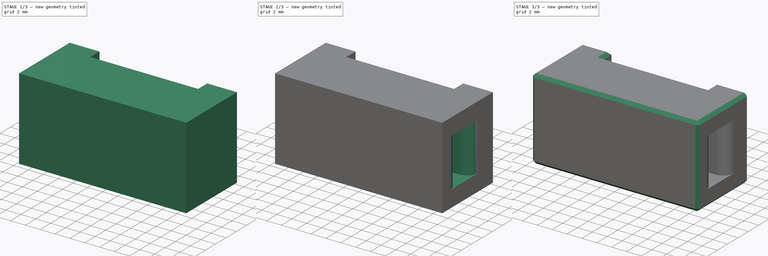
[diagram: build sequence overview — one tinted view per stage of 3, left to right]
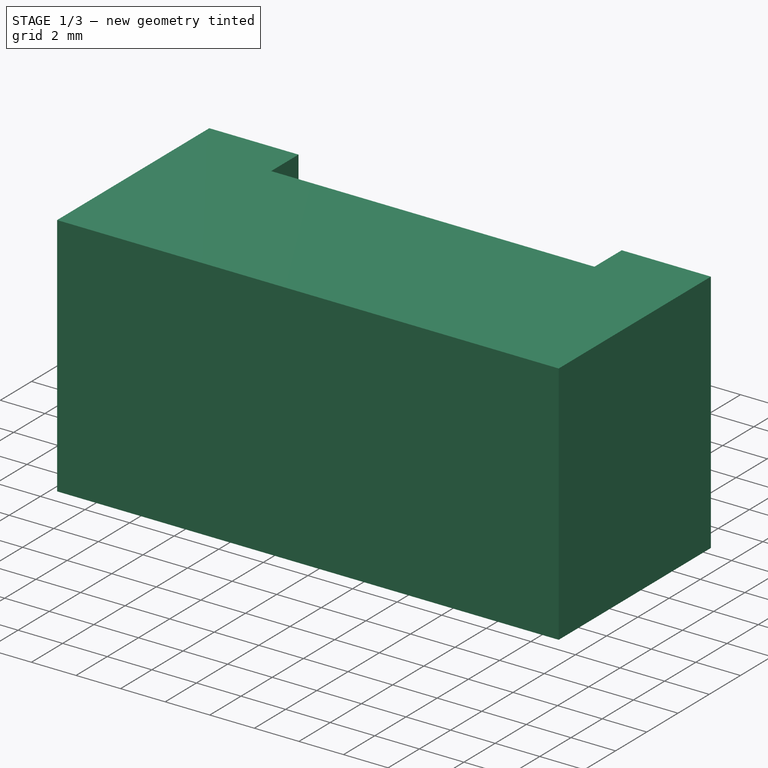
[diagram: stage 1 of 3 — iso view after this stage's code; geometry added in this stage tinted green]
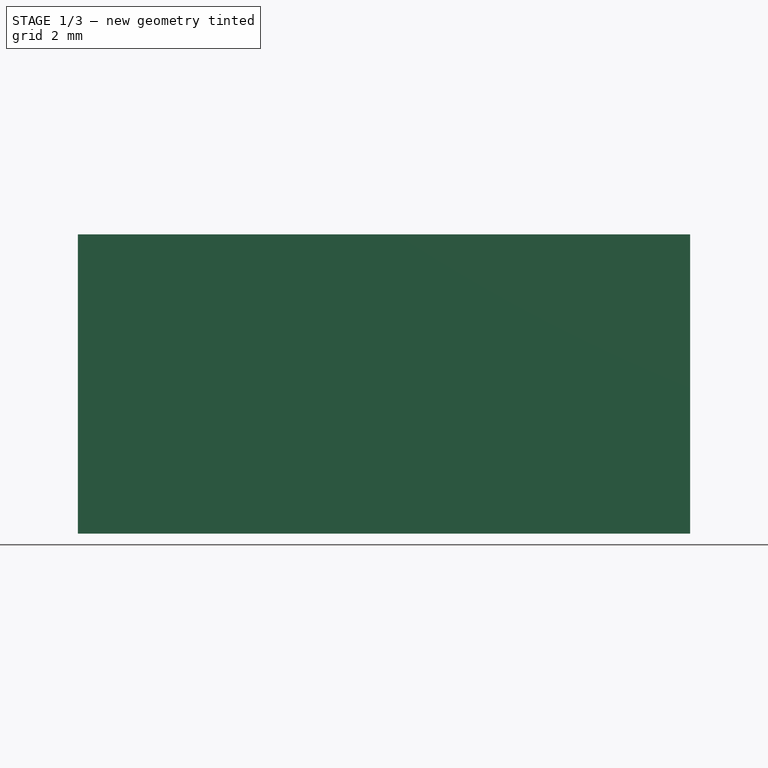
[diagram: stage 1 of 3 — front view after this stage's code; geometry added in this stage tinted green]
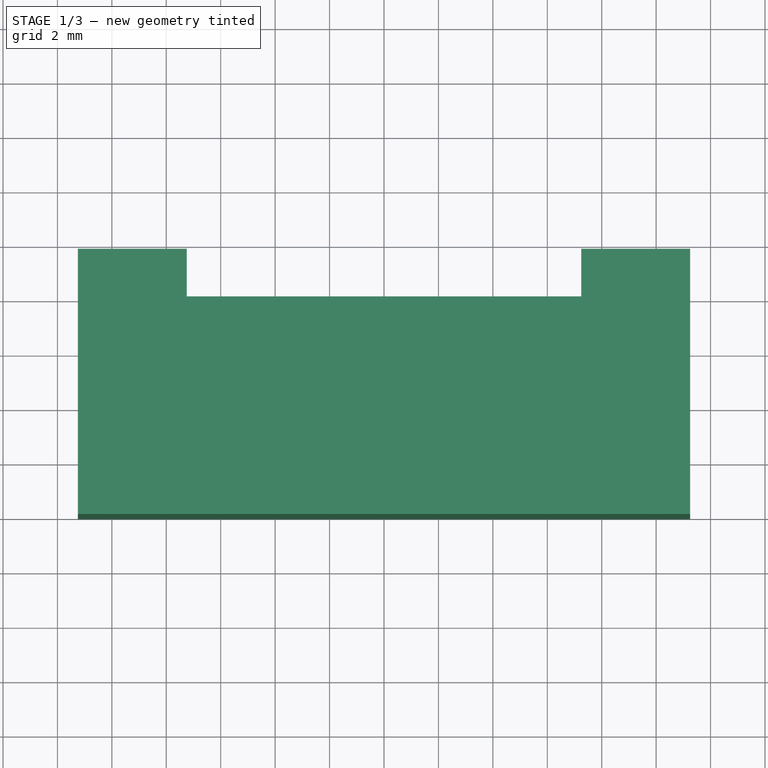
[diagram: stage 1 of 3 — top view after this stage's code; geometry added in this stage tinted green]
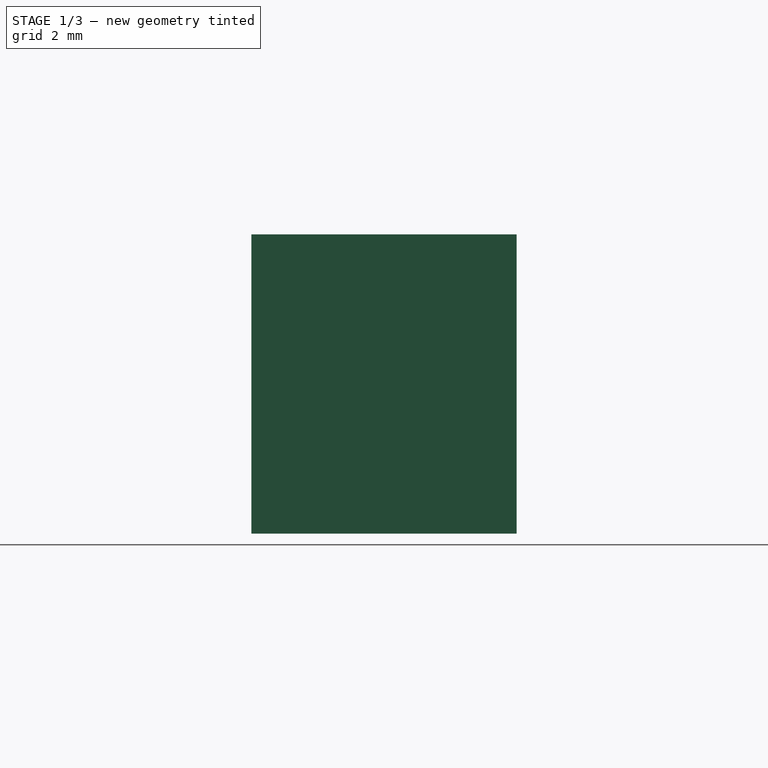
[diagram: stage 1 of 3 — right view after this stage's code; geometry added in this stage tinted green]
FCSTD DOCUMENT  (FreeCAD 0.19R24366 (Git))
Label: belt-clamp
License: All rights reserved
LicenseURL: http://en.wikipedia.org/wiki/All_rights_reserved
objects: PartDesign::Fillet×3, Sketcher::SketchObject×2, PartDesign::Pad×1, PartDesign::Plane×1, PartDesign::Pocket×1, PartDesign::Mirrored×1, PartDesign::Chamfer×1, PartDesign::Body×1
note: 17 computed .brp shape members not serialized (recipe doc carries the construction recipe); baked Part::Feature solids carry a one-line shape summary decoded from their .brp

FEATURE [Sketcher::SketchObject] Sketch
  FullyConstrained = true
  MapMode = 5
  Support = -> [XY_Plane]
  sketch-geometry (8):
    g0: LineSegment StartX=-7.25 StartY=1.75 StartZ=0 EndX=-7.25 EndY=0 EndZ=0
    g1: LineSegment StartX=-7.25 StartY=0 StartZ=0 EndX=7.25 EndY=0 EndZ=0
    g2: LineSegment StartX=7.25 StartY=0 StartZ=0 EndX=7.25 EndY=1.75 EndZ=0
    g3: LineSegment StartX=7.25 StartY=1.75 StartZ=0 EndX=11.25 EndY=1.75 EndZ=0
    g4: LineSegment StartX=11.25 StartY=1.75 StartZ=0 EndX=11.25 EndY=-8 EndZ=0
    g5: LineSegment StartX=11.25 StartY=-8 StartZ=0 EndX=-11.25 EndY=-8 EndZ=0
    g6: LineSegment StartX=-11.25 StartY=-8 StartZ=0 EndX=-11.25 EndY=1.75 EndZ=0
    g7: LineSegment StartX=-11.25 StartY=1.75 StartZ=0 EndX=-7.25 EndY=1.75 EndZ=0
  constraints (24):
    c: PointOnObject(g0,g-1)
    c: Vertical(g0)
    c: Coincident(g0,g1)
    c: PointOnObject(g1,g-1)
    c: Coincident(g1,g2)
    c: Coincident(g2,g3)
    c: Horizontal(g3)
    c: Coincident(g3,g4)
    c: Vertical(g4)
    c: Coincident(g4,g5)
    c: Horizontal(g5)
    c: Coincident(g5,g6)
    c: Vertical(g6)
    c: Coincident(g6,g7)
    c: Coincident(g7,g0)
    c: Horizontal(g7)
    c: DistanceX(g1,g1) = 14.5
    c: Vertical(g2)
    c: DistanceX(g0,g-1) = 7.25
    c: DistanceX(g7,g7) = 4
    c: DistanceX(g3,g3) = 4
    c: Horizontal(g2,g0)
    c: DistanceY(g-1,g6) = 1.75
    c: DistanceY(g5,g-1) = 8
FEATURE [PartDesign::Pad] Pad
  Direction = (1,1,1)
  Length = 11
  Length2 = 100
  Profile = -> Sketch
  Type = 0
FEATURE [PartDesign::Plane] DatumPlane
  AttachmentOffset = pos=(0,0,5.5) rot=(0,0,1;0rad)
  Length = 60
  MapMode = 5
  Placement = pos=(0,0,5.5) rot=(0,0,1;0rad)
  ResizeMode = 0
  Support = -> [XY_Plane]
  Width = 60
FEATURE [Sketcher::SketchObject] Sketch001
  FullyConstrained = true
  MapMode = 5
  Placement = pos=(0,0,5.5) rot=(0,0,1;0rad)
  Support = -> [DatumPlane]
  sketch-geometry (8):
    g0: LineSegment StartX=-1.5 StartY=0 StartZ=0 EndX=-3.5 EndY=0 EndZ=0
    g1: LineSegment StartX=-3.5 StartY=0 StartZ=0 EndX=-6 EndY=-2.6 EndZ=0
    g2: LineSegment StartX=-6 StartY=-2.6 StartZ=0 EndX=-11.25 EndY=-2.6 EndZ=0
    g3: LineSegment StartX=-11.25 StartY=-2.6 StartZ=0 EndX=-11.25 EndY=-5 EndZ=0
    g4: LineSegment StartX=-11.25 StartY=-5 StartZ=0 EndX=0 EndY=-5 EndZ=0
    g5: LineSegment StartX=0 StartY=-5 StartZ=0 EndX=0 EndY=-2.6 EndZ=0
    g6: LineSegment StartX=0 StartY=-2.6 StartZ=0 EndX=-4 EndY=-2.6 EndZ=0
    g7: LineSegment StartX=-4 StartY=-2.6 StartZ=0 EndX=-1.5 EndY=0 EndZ=0
  constraints (24):
    c: PointOnObject(g0,g-1)
    c: PointOnObject(g0,g-1)
    c: DistanceX(g0,g-1) = 1.5
    c: DistanceX(g0,g0) = 2
    c: Coincident(g0,g1)
    c: Coincident(g1,g2)
    c: Horizontal(g2)
    c: Coincident(g2,g3)
    c: Vertical(g3)
    c: Coincident(g3,g4)
    c: PointOnObject(g4,g-2)
    c: Horizontal(g4)
    c: Coincident(g4,g5)
    c: PointOnObject(g5,g-2)
    c: Coincident(g5,g6)
    c: Horizontal(g6)
    c: Coincident(g6,g7)
    c: Coincident(g7,g0)
    c: Horizontal(g1,g6)
    c: DistanceY(g3,g3) = 2.4
    c: DistanceX(g2,g-1) = 11.25
    c: DistanceX(g1,g6) = 2
    c: DistanceX(g6,g5) = 4
    c: DistanceY(g2,g-1) = 2.6
FEATURE [PartDesign::Pocket] Pocket
  BaseFeature = -> Pad
  Length = 6.5
  Length2 = 100
  Midplane = true
  Profile = -> Sketch001
  Type = 0
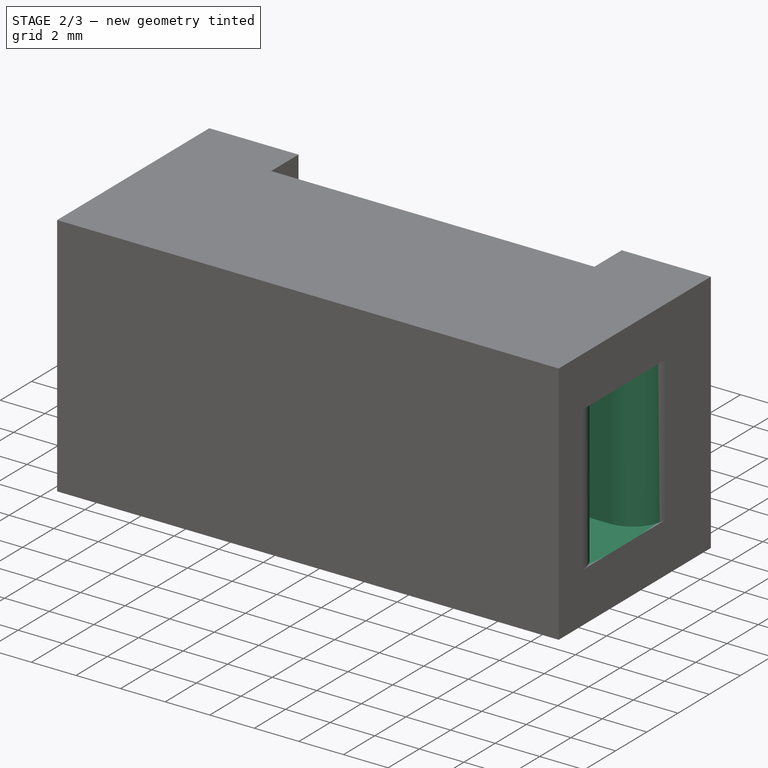
[diagram: stage 2 of 3 — iso view after this stage's code; geometry added in this stage tinted green]
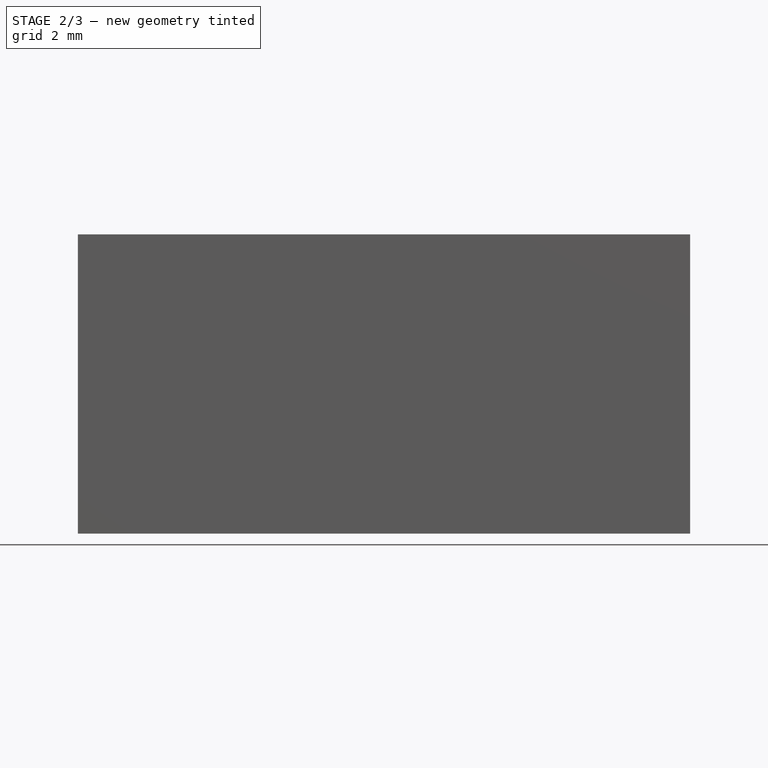
[diagram: stage 2 of 3 — front view after this stage's code; geometry added in this stage tinted green]
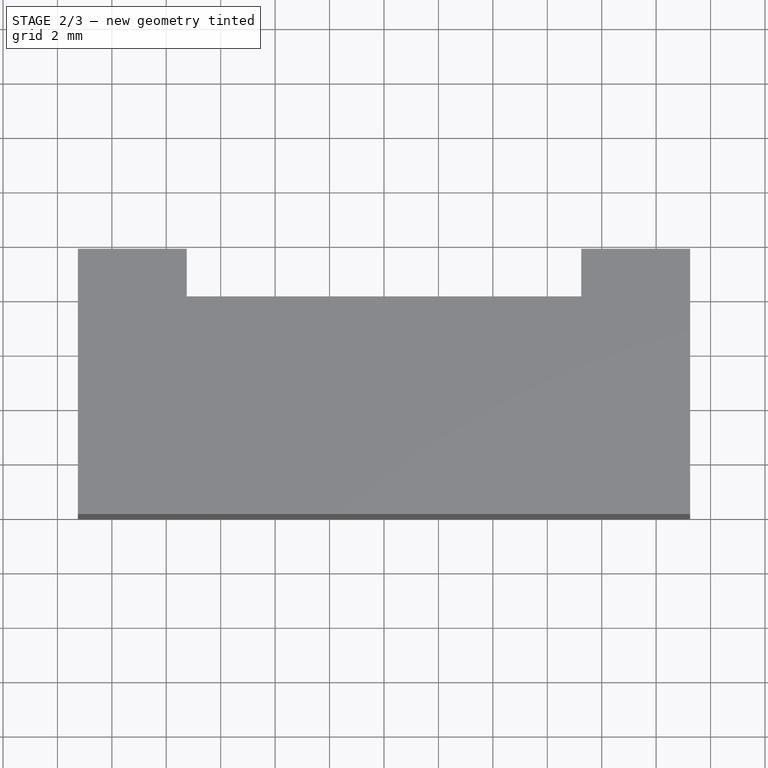
[diagram: stage 2 of 3 — top view after this stage's code; geometry added in this stage tinted green]
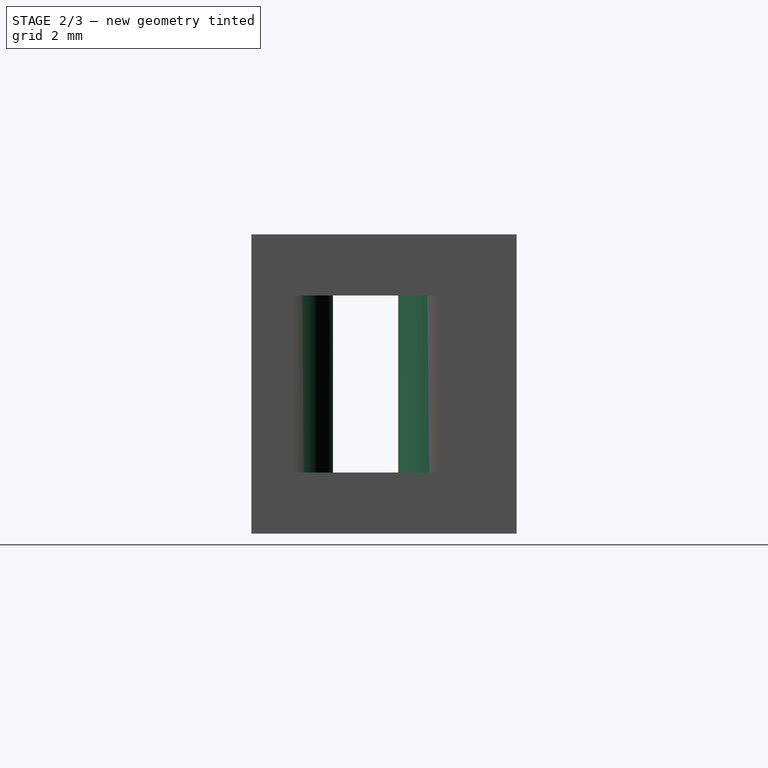
[diagram: stage 2 of 3 — right view after this stage's code; geometry added in this stage tinted green]
FEATURE [PartDesign::Mirrored] Mirrored
  BaseFeature = -> Pocket
  MirrorPlane = -> Sketch001 [V_Axis]
  Originals = -> [Pocket]
FEATURE [PartDesign::Fillet] Fillet
  Base = -> Mirrored [Edge66,Edge65,Edge30,Edge32]
  BaseFeature = -> Mirrored
  Radius = 1.5
  SupportTransform = false
FEATURE [PartDesign::Fillet] Fillet001
  Base = -> Fillet [Edge85,Edge86,Edge49,Edge58]
  BaseFeature = -> Fillet
  Radius = 1
  SupportTransform = false
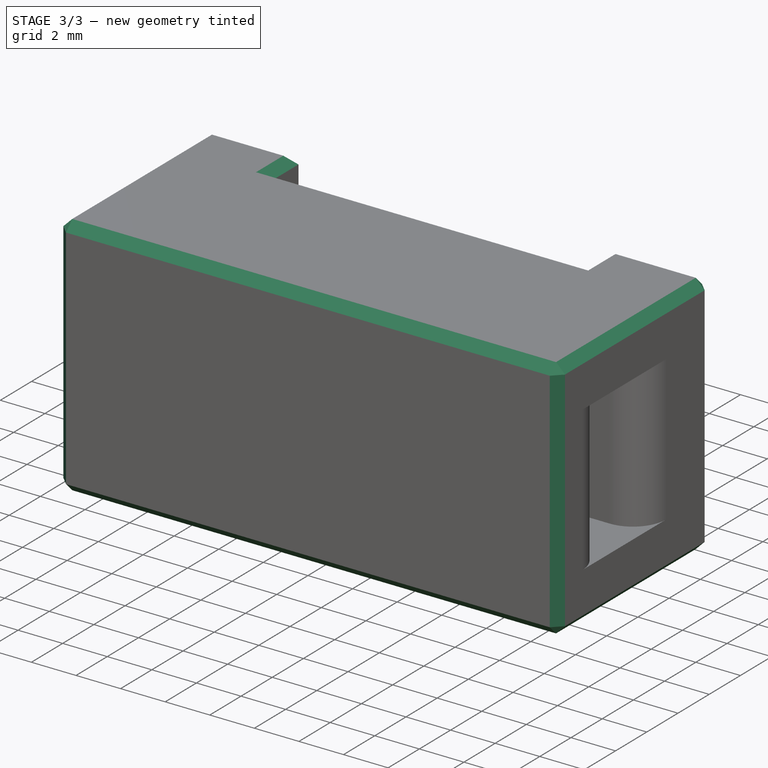
[diagram: stage 3 of 3 — iso view after this stage's code; geometry added in this stage tinted green]
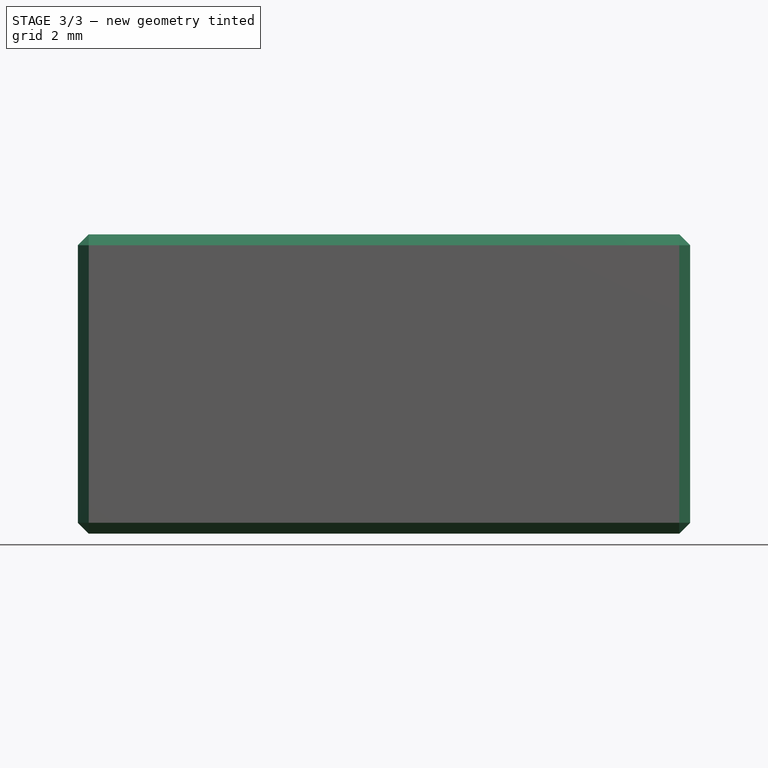
[diagram: stage 3 of 3 — front view after this stage's code; geometry added in this stage tinted green]
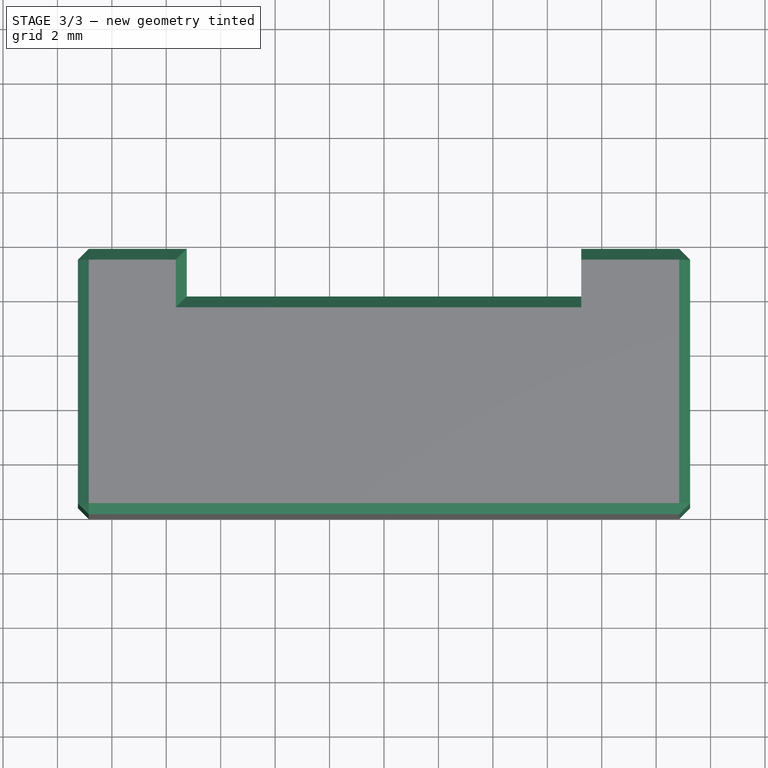
[diagram: stage 3 of 3 — top view after this stage's code; geometry added in this stage tinted green]
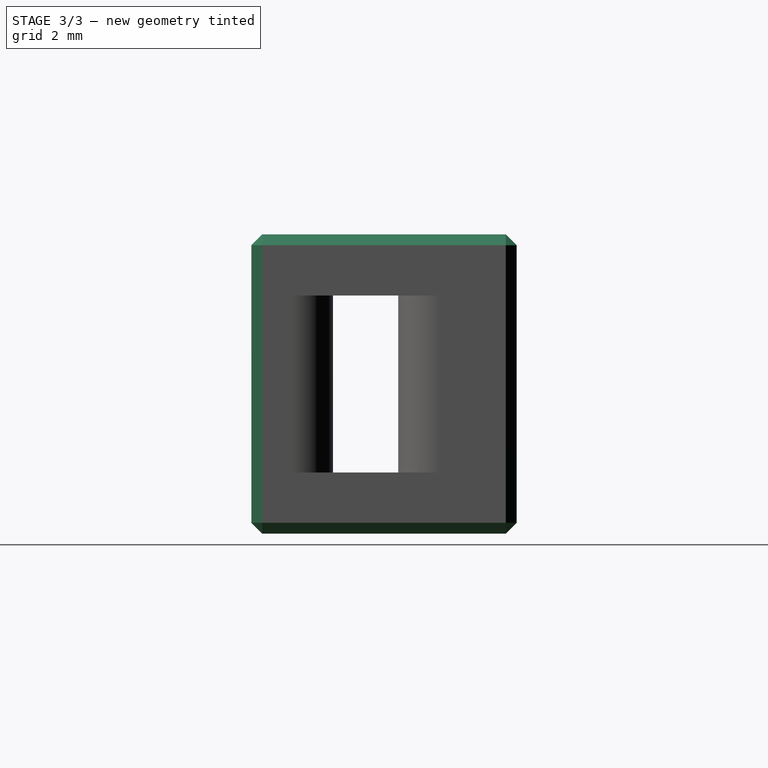
[diagram: stage 3 of 3 — right view after this stage's code; geometry added in this stage tinted green]
FEATURE [PartDesign::Fillet] Fillet002
  Base = -> Fillet001 [Edge39,Edge22]
  BaseFeature = -> Fillet001
  Radius = 0.4
  SupportTransform = false
FEATURE [PartDesign::Chamfer] Chamfer
  Angle = 45
  Base = -> Fillet002 [Face23,Edge98,Edge93,Edge90,Edge89,Edge32,Edge31,Edge91,Edge92,Edge97,Edge109,Edge95,Edge48,Edge50,Edge100,Edge49]
  BaseFeature = -> Fillet002
  ChamferType = 0
  FlipDirection = false
  Size = 0.4
  Size2 = 1
  SupportTransform = false
FEATURE [PartDesign::Body] Body
  Group = -> [Sketch,Pad,DatumPlane,Sketch001,Pocket,Mirrored,Fillet,Fillet001,Fillet002,Chamfer]
  Origin = -> Origin
  Tip = -> Chamfer
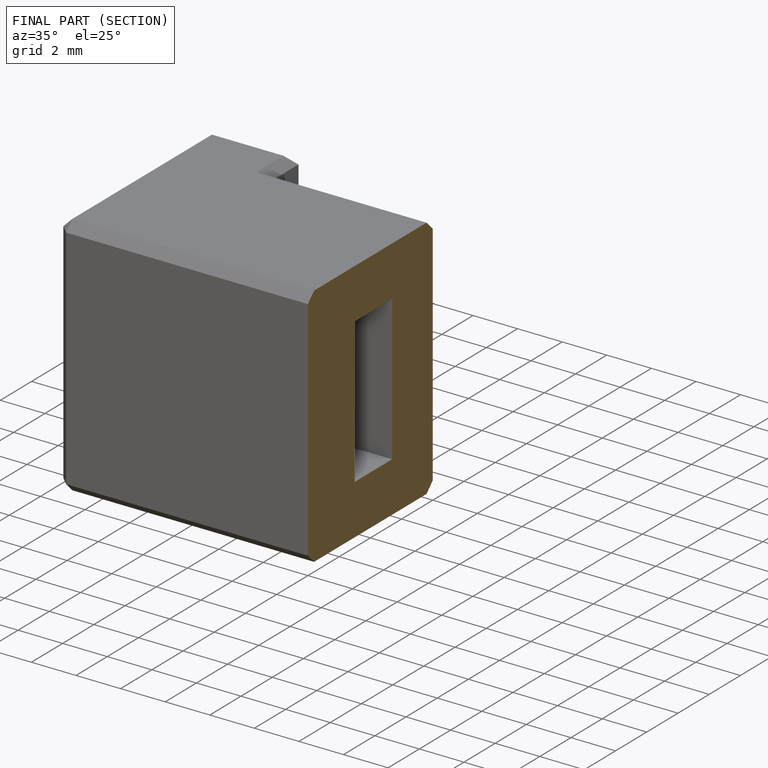
[diagram: finished part — half-section view (interior)]
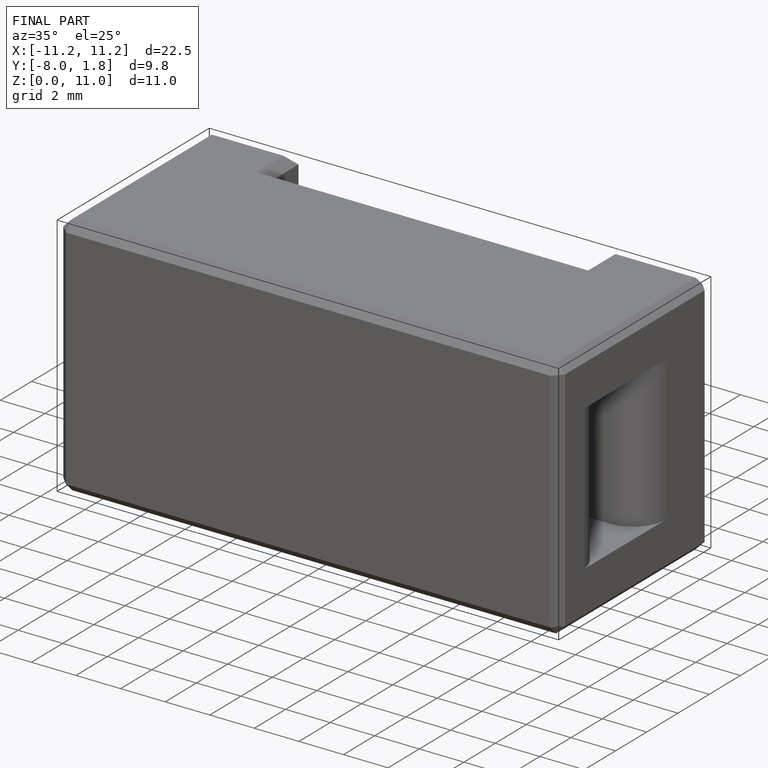
[diagram: finished part — iso view with bounding-box wireframe]
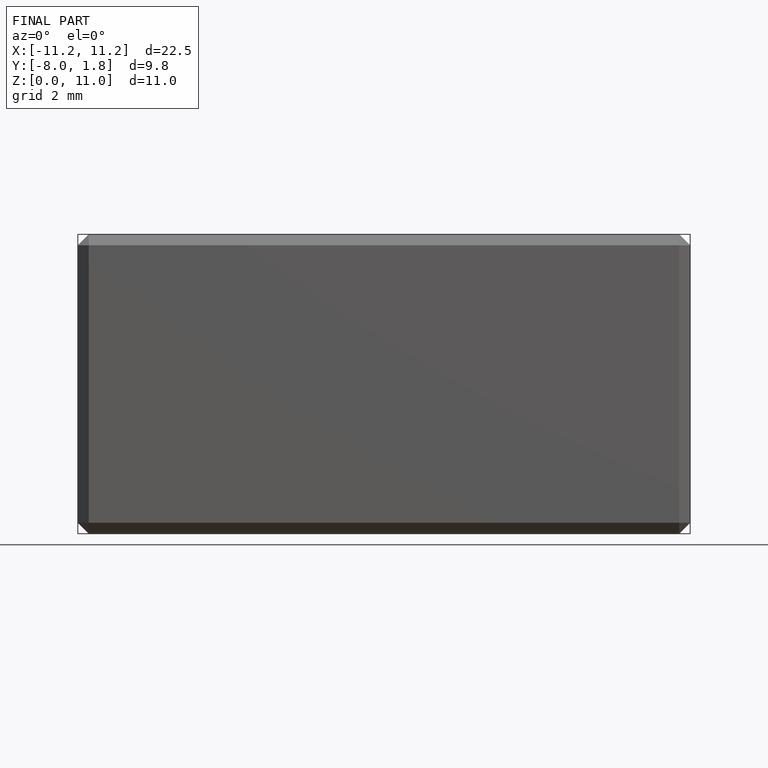
[diagram: finished part — front view with bounding-box wireframe]
